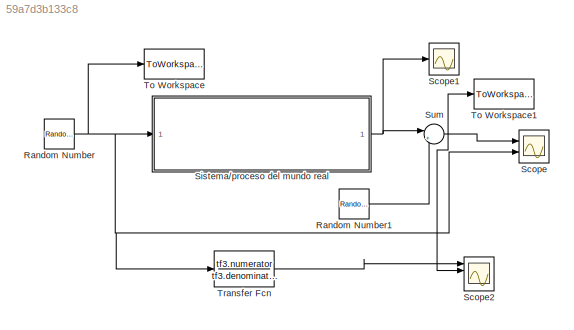
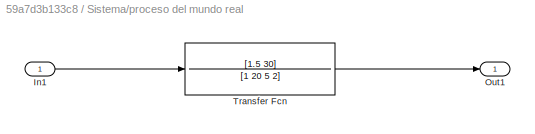
MODEL slx_59a7d3b133c8
KIND model
CONFIG AbsTol = auto
CONFIG EnableMultiTasking = off
CONFIG FixedStep = auto
CONFIG MaxStep = auto
CONFIG MinStep = auto
CONFIG RelTol = 1e-3
CONFIG SampleTimeConstraint = Unconstrained
CONFIG Solver = VariableStepAuto
CONFIG SolverName = VariableStepAuto
CONFIG StartTime = 0.0
CONFIG StopTime = 1000
BLOCK [RandomNumber] Random Number
  SampleTime = 50
  Variance = 0.2
BLOCK [RandomNumber] Random Number1
  SampleTime = 0.1
  Variance = 0.015
BLOCK [Scope] Scope
  Floating = off
  NumInputPorts = 2
  Ports = [2]
  ScopeSpecificationString = Simulink.scopes.TimeScopeBlockCfg('CurrentConfiguration', extmgr.ConfigurationSet(extmgr.Configuration('Core','General UI',true),extmgr.Configuration('Core','Source UI',true),extmgr.Configuration('Sources','WiredSimulink',true),extmgr.Configuration('Visuals','Time Domain',true,'SerializedDisplays',{struct('MinYLimReal','-27.8537','MaxYLimReal','30.67322','YLabelReal','','MinYLimMag','0.00000','Max...<+1420ch>
BLOCK [Scope] Scope1
  Floating = off
  NumInputPorts = 1
  Ports = [1]
  ScopeSpecificationString = Simulink.scopes.TimeScopeBlockCfg('CurrentConfiguration', extmgr.ConfigurationSet(extmgr.Configuration('Core','General UI',true),extmgr.Configuration('Core','Source UI',true),extmgr.Configuration('Sources','WiredSimulink',true,'DataLoggingVariableName','ScopeData1'),extmgr.Configuration('Visuals','Time Domain',true,'SerializedDisplays',{struct('MinYLimReal','-27.66418','MaxYLimReal','30.52582','YL...<+1447ch>
BLOCK [Scope] Scope2
  Floating = off
  NumInputPorts = 4
  Ports = [4]
  ScopeSpecificationString = Simulink.scopes.TimeScopeBlockCfg('CurrentConfiguration', extmgr.ConfigurationSet(extmgr.Configuration('Core','General UI',true),extmgr.Configuration('Core','Source UI',true),extmgr.Configuration('Sources','WiredSimulink',true,'DataLoggingVariableName','ScopeData2'),extmgr.Configuration('Visuals','Time Domain',true,'SerializedDisplays',{struct('MinYLimReal','-48.08477','MaxYLimReal','53.01049','YL...<+1613ch>
BLOCK [SubSystem] Sistema//proceso del mundo real
  Ports = [1, 1]
  RequestExecContextInheritance = off
BLOCK [Inport] Sistema//proceso del mundo real/In1
  IconDisplay = Port number
BLOCK [Outport] Sistema//proceso del mundo real/Out1
  IconDisplay = Port number
BLOCK [TransferFcn] Sistema//proceso del mundo real/Transfer Fcn
  Denominator = [1 20 5 2]
  Numerator = [1.5 30]
BLOCK [Sum] Sum
  IconShape = round
  InputSameDT = off
  Inputs = |++
  OutDataTypeStr = Inherit: Inherit via internal rule
  Ports = [2, 1]
  SaturateOnIntegerOverflow = off
BLOCK [ToWorkspace] To Workspace
  FixptAsFi = on
  MaxDataPoints = inf
  Ports = [1]
  SampleTime = 1
  Save2DSignal = 3-D array (concatenate along third dimension)
  VariableName = entrada
BLOCK [ToWorkspace] To Workspace1
  FixptAsFi = on
  MaxDataPoints = inf
  Ports = [1]
  SampleTime = 1
  Save2DSignal = 3-D array (concatenate along third dimension)
  VariableName = salida
BLOCK [TransferFcn] Transfer Fcn
  Denominator = tf3.denominator
  Numerator = tf3.numerator
LINE Random Number1:1 -> Sum:2
NET Random Number:1 -> Scope:2, Sistema//proceso del mundo real:1, To Workspace:1, Transfer Fcn:1
LINE Sistema//proceso del mundo real/In1:1 -> Sistema//proceso del mundo real/Transfer Fcn:1
LINE Sistema//proceso del mundo real/Transfer Fcn:1 -> Sistema//proceso del mundo real/Out1:1
NET Sistema//proceso del mundo real:1 -> Scope1:1, Sum:1
NET Sum:1 -> Scope2:2, Scope:1, To Workspace1:1
LINE Transfer Fcn:1 -> Scope2:1
note: NET lines group one-source signal fan-out (src -> all destinations, sorted); 1:1 wires keep LINE
